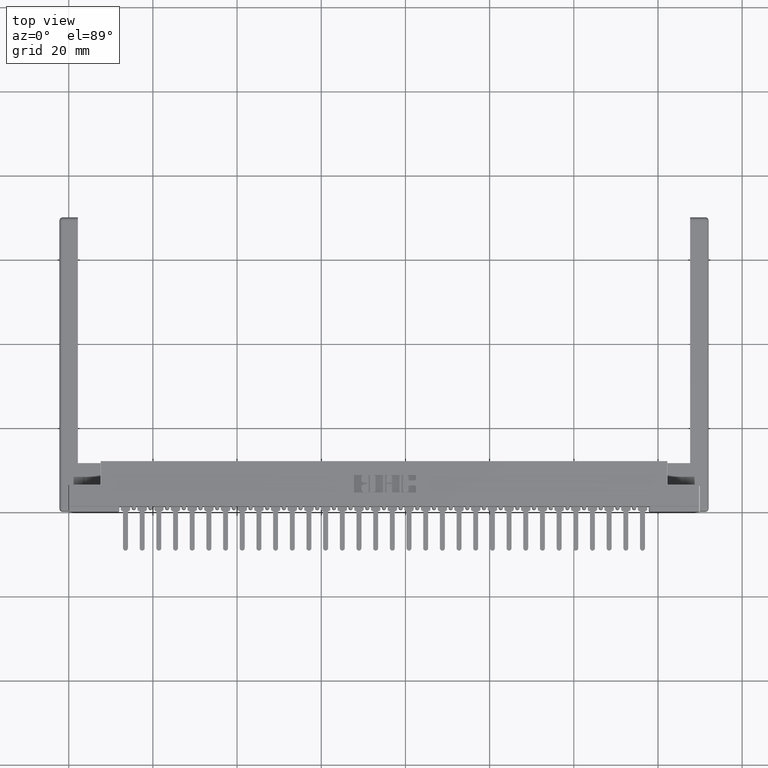
[diagram: clean part render]
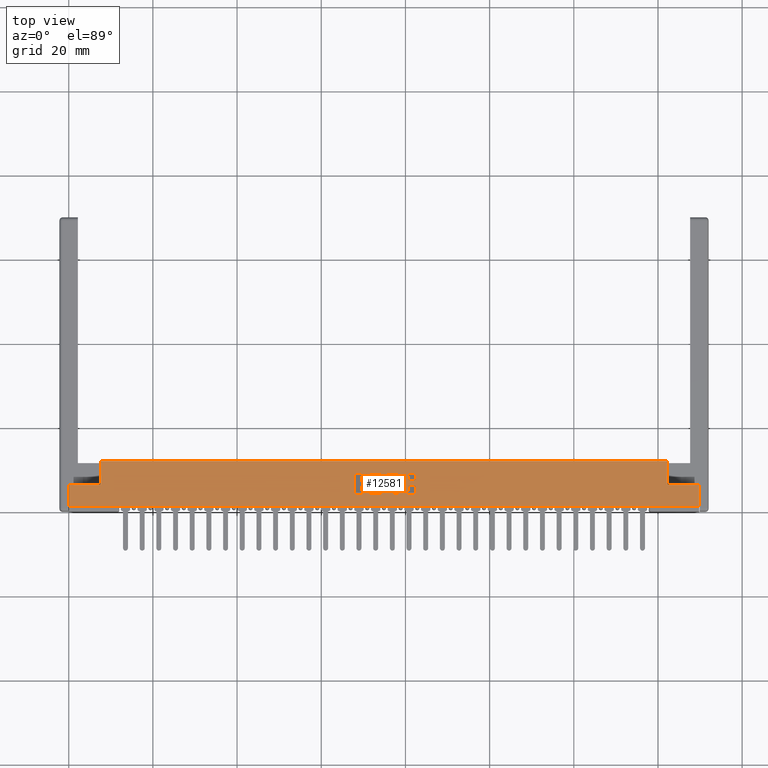
[diagram: same view with one face highlighted and labeled with its STEP entity id]
A machine part, top view. The second image highlights one B-rep face of the part: STEP entity #12581.
In plain terms, the highlighted planar face has unit normal (0, 0, -1).
Its self-contained STEP definition (entity closure, byte-faithful):
#109 = EDGE_CURVE ( 'NONE', #3890, #13025, #19730, .T. ) ;
#148 = VERTEX_POINT ( 'NONE', #159 ) ;
#159 = CARTESIAN_POINT ( 'NONE',  ( 2.814770709962975737, 0.1638432979619831309, 0.0000000000000000000 ) ) ;
#169 = EDGE_CURVE ( 'NONE', #148, #7857, #10011, .T. ) ;
#322 = DIRECTION ( 'NONE',  ( 1.000000000000000000, 0.0000000000000000000, 0.0000000000000000000 ) ) ;
#379 = DIRECTION ( 'NONE',  ( 1.000000000000000000, 0.0000000000000000000, 0.0000000000000000000 ) ) ;
#389 = VERTEX_POINT ( 'NONE', #3522 ) ;
#432 = ORIENTED_EDGE ( 'NONE', *, *, #19576, .F. ) ;
#437 = VERTEX_POINT ( 'NONE', #1565 ) ;
#440 = CARTESIAN_POINT ( 'NONE',  ( 2.782133606535350800, 0.3532857328953861731, 0.0000000000000000000 ) ) ;
#445 = VECTOR ( 'NONE', #20521, 39.37007874015748143 ) ;
#519 = ORIENTED_EDGE ( 'NONE', *, *, #14293, .F. ) ;
#563 = CARTESIAN_POINT ( 'NONE',  ( 2.677842110619921723, 0.1736589681657899065, 0.0000000000000000000 ) ) ;
#579 = CARTESIAN_POINT ( 'NONE',  ( 3.245678631909939771, 0.0000000000000000000, 0.0000000000000000000 ) ) ;
#616 = AXIS2_PLACEMENT_3D ( 'NONE', #10882, #13420, #27750 ) ;
#619 = DIRECTION ( 'NONE',  ( -1.000000000000000000, 0.0000000000000000000, 0.0000000000000000000 ) ) ;
#642 = CARTESIAN_POINT ( 'NONE',  ( -0.0000000000000000000, 0.2551290308573567756, 0.0000000000000000000 ) ) ;
#692 = CARTESIAN_POINT ( 'NONE',  ( 0.0000000000000000000, 0.2499999999999999722, 0.0000000000000000000 ) ) ;
#727 = ORIENTED_EDGE ( 'NONE', *, *, #15543, .T. ) ;
#771 = EDGE_CURVE ( 'NONE', #2831, #27745, #6830, .T. ) ;
#850 = VERTEX_POINT ( 'NONE', #15987 ) ;
#930 = AXIS2_PLACEMENT_3D ( 'NONE', #18938, #6392, #11117 ) ;
#931 = ORIENTED_EDGE ( 'NONE', *, *, #21937, .F. ) ;
#1007 = FACE_OUTER_BOUND ( 'NONE', #15620, .T. ) ;
#1031 = VERTEX_POINT ( 'NONE', #7723 ) ;
#1037 = CIRCLE ( 'NONE', #16191, 0.009815670203805798924 ) ;
#1085 = DIRECTION ( 'NONE',  ( -1.000000000000000000, 0.0000000000000000000, 0.0000000000000000000 ) ) ;
#1098 = VERTEX_POINT ( 'NONE', #12626 ) ;
#1124 = CIRCLE ( 'NONE', #4208, 0.009815670203787768208 ) ;
#1175 = VECTOR ( 'NONE', #12589, 39.37007874015748143 ) ;
#1291 = ORIENTED_EDGE ( 'NONE', *, *, #27779, .F. ) ;
#1322 = VERTEX_POINT ( 'NONE', #2610 ) ;
#1350 = ORIENTED_EDGE ( 'NONE', *, *, #14114, .F. ) ;
#1389 = CIRCLE ( 'NONE', #6483, 0.006870969142662365636 ) ;
#1503 = CARTESIAN_POINT ( 'NONE',  ( -8.743304377293396836E-15, 0.2551290308572464194, 0.0000000000000000000 ) ) ;
#1531 = DIRECTION ( 'NONE',  ( -0.0000000000000000000, 0.0000000000000000000, 1.000000000000000000 ) ) ;
#1532 = VERTEX_POINT ( 'NONE', #12893 ) ;
#1565 = CARTESIAN_POINT ( 'NONE',  ( 5.897999999999998799, 0.2499999999999999722, 0.0000000000000000000 ) ) ;
#1599 = VERTEX_POINT ( 'NONE', #6395 ) ;
#1664 = EDGE_CURVE ( 'NONE', #6269, #148, #9920, .T. ) ;
#1671 = DIRECTION ( 'NONE',  ( -0.0000000000000000000, 0.0000000000000000000, 1.000000000000000000 ) ) ;
#1692 = CARTESIAN_POINT ( 'NONE',  ( 3.120038053301264824, 0.1736589681657899065, 0.0000000000000000000 ) ) ;
#1855 = ORIENTED_EDGE ( 'NONE', *, *, #16971, .T. ) ;
#1934 = AXIS2_PLACEMENT_3D ( 'NONE', #12539, #7633, #14613 ) ;
#2101 = EDGE_CURVE ( 'NONE', #17139, #29171, #3014, .T. ) ;
#2200 = DIRECTION ( 'NONE',  ( -0.0000000000000000000, 0.0000000000000000000, 1.000000000000000000 ) ) ;
#2324 = EDGE_CURVE ( 'NONE', #7024, #12341, #1037, .T. ) ;
#2334 = EDGE_LOOP ( 'NONE', ( #19324, #1350, #1855, #3998, #10171, #3853, #15343, #30372, #20152, #22276, #3202, #16376, #24908, #14928 ) ) ;
#2430 = CARTESIAN_POINT ( 'NONE',  ( 2.677842110619937710, 0.3503410318342100038, 0.0000000000000000000 ) ) ;
#2512 = CARTESIAN_POINT ( 'NONE',  ( 3.083229290037013293, 0.3601567020380065376, 0.0000000000000000000 ) ) ;
#2610 = CARTESIAN_POINT ( 'NONE',  ( 3.235862961706166274, 0.2909562271012334222, 0.0000000000000000000 ) ) ;
#2680 = ORIENTED_EDGE ( 'NONE', *, *, #14192, .F. ) ;
#2724 = CARTESIAN_POINT ( 'NONE',  ( 3.176478156973165490, 0.3201578454992597966, 0.0000000000000000000 ) ) ;
#2770 = CARTESIAN_POINT ( 'NONE',  ( 3.186293827176966076, 0.2433502266127574865, 0.0000000000000000000 ) ) ;
#2802 = LINE ( 'NONE', #3272, #26604 ) ;
#2831 = VERTEX_POINT ( 'NONE', #20261 ) ;
#2888 = DIRECTION ( 'NONE',  ( -0.0000000000000000000, 0.0000000000000000000, 1.000000000000000000 ) ) ;
#2890 = CARTESIAN_POINT ( 'NONE',  ( 3.033660155507785561, 0.1638432979619845187, 0.0000000000000000000 ) ) ;
#2904 = DIRECTION ( 'NONE',  ( 1.000000000000000000, 0.0000000000000000000, 0.0000000000000000000 ) ) ;
#2906 = CIRCLE ( 'NONE', #9982, 0.009815670203795418339 ) ;
#2965 = DIRECTION ( 'NONE',  ( 0.0000000000000000000, -1.000000000000000000, 0.0000000000000000000 ) ) ;
#3002 = DIRECTION ( 'NONE',  ( 1.000000000000000000, 0.0000000000000000000, 0.0000000000000000000 ) ) ;
#3014 = CIRCLE ( 'NONE', #27864, 0.006870969142648706424 ) ;
#3190 = CARTESIAN_POINT ( 'NONE',  ( 3.083229290037010184, 0.1638432979619845187, 0.0000000000000000000 ) ) ;
#3202 = ORIENTED_EDGE ( 'NONE', *, *, #24760, .T. ) ;
#3237 = CARTESIAN_POINT ( 'NONE',  ( 0.0000000000000000000, 0.2499999999999999722, 0.0000000000000000000 ) ) ;
#3256 = DIRECTION ( 'NONE',  ( -1.000000000000000000, 0.0000000000000000000, -0.0000000000000000000 ) ) ;
#3272 = CARTESIAN_POINT ( 'NONE',  ( 3.023844485303984531, 0.0000000000000000000, 0.0000000000000000000 ) ) ;
#3386 = AXIS2_PLACEMENT_3D ( 'NONE', #14085, #21421, #11685 ) ;
#3504 = AXIS2_PLACEMENT_3D ( 'NONE', #440, #19837, #3002 ) ;
#3522 = CARTESIAN_POINT ( 'NONE',  ( 3.235862961706133412, 0.1638432979619831309, 0.0000000000000000000 ) ) ;
#3678 = CARTESIAN_POINT ( 'NONE',  ( 3.245678631909971745, 0.3503410318341947383, 0.0000000000000000000 ) ) ;
#3724 = DIRECTION ( 'NONE',  ( -0.0000000000000000000, 0.0000000000000000000, 1.000000000000000000 ) ) ;
#3803 = CARTESIAN_POINT ( 'NONE',  ( 2.782133606415413851, 0.1775852362473101520, 0.0000000000000000000 ) ) ;
#3841 = CARTESIAN_POINT ( 'NONE',  ( 2.737226915352909185, 0.3002811137948582787, 0.0000000000000000000 ) ) ;
#3850 = CARTESIAN_POINT ( 'NONE',  ( 3.014028815100187497, 0.2551290308573497256, 0.0000000000000000000 ) ) ;
#3853 = ORIENTED_EDGE ( 'NONE', *, *, #10281, .F. ) ;
#3890 = VERTEX_POINT ( 'NONE', #5492 ) ;
#3896 = LINE ( 'NONE', #25804, #26090 ) ;
#3897 = ORIENTED_EDGE ( 'NONE', *, *, #771, .F. ) ;
#3952 = CARTESIAN_POINT ( 'NONE',  ( 2.782133606535350800, 0.3532857328953861731, 0.0000000000000000000 ) ) ;
#3954 = AXIS2_PLACEMENT_3D ( 'NONE', #17218, #26909, #17370 ) ;
#3987 = ORIENTED_EDGE ( 'NONE', *, *, #6527, .T. ) ;
#3998 = ORIENTED_EDGE ( 'NONE', *, *, #31070, .F. ) ;
#4003 = DIRECTION ( 'NONE',  ( 1.000000000000000000, 0.0000000000000000000, 0.0000000000000000000 ) ) ;
#4071 = DIRECTION ( 'NONE',  ( -1.000000000000000000, -3.427012734660361250E-14, 0.0000000000000000000 ) ) ;
#4115 = ORIENTED_EDGE ( 'NONE', *, *, #10347, .F. ) ;
#4141 = CARTESIAN_POINT ( 'NONE',  ( 0.4729999999999998650, 0.05099999999999999672, 0.0000000000000000000 ) ) ;
#4208 = AXIS2_PLACEMENT_3D ( 'NONE', #7457, #22531, #17126 ) ;
#4261 = ORIENTED_EDGE ( 'NONE', *, *, #5994, .F. ) ;
#4278 = VECTOR ( 'NONE', #5283, 39.37007874015748143 ) ;
#4300 = VECTOR ( 'NONE', #5176, 39.37007874015748143 ) ;
#4550 = CARTESIAN_POINT ( 'NONE',  ( 0.0000000000000000000, 0.4729999999999999760, 0.0000000000000000000 ) ) ;
#4598 = CARTESIAN_POINT ( 'NONE',  ( 3.176478156973165490, 0.0000000000000000000, 0.0000000000000000000 ) ) ;
#4605 = ORIENTED_EDGE ( 'NONE', *, *, #12199, .T. ) ;
#4720 = DIRECTION ( 'NONE',  ( 1.000000000000000000, 0.0000000000000000000, 0.0000000000000000000 ) ) ;
#4756 = DIRECTION ( 'NONE',  ( 0.0000000000000000000, -1.000000000000000000, 0.0000000000000000000 ) ) ;
#4839 = VECTOR ( 'NONE', #2965, 39.37007874015748143 ) ;
#4893 = VERTEX_POINT ( 'NONE', #2512 ) ;
#4933 = DIRECTION ( 'NONE',  ( -1.000000000000000000, 0.0000000000000000000, 0.0000000000000000000 ) ) ;
#4966 = CARTESIAN_POINT ( 'NONE',  ( 3.093044960240805885, 0.0000000000000000000, 0.0000000000000000000 ) ) ;
#5016 = EDGE_CURVE ( 'NONE', #14729, #20585, #20461, .T. ) ;
#5022 = CARTESIAN_POINT ( 'NONE',  ( 2.789004575677972664, 0.2620000000000202722, 0.0000000000000000000 ) ) ;
#5116 = EDGE_CURVE ( 'NONE', #9451, #1532, #19585, .T. ) ;
#5176 = DIRECTION ( 'NONE',  ( 1.000000000000000000, -0.0000000000000000000, 0.0000000000000000000 ) ) ;
#5223 = LINE ( 'NONE', #26660, #19167 ) ;
#5230 = AXIS2_PLACEMENT_3D ( 'NONE', #22480, #3724, #6105 ) ;
#5283 = DIRECTION ( 'NONE',  ( 1.000000000000000000, 0.0000000000000000000, 0.0000000000000000000 ) ) ;
#5465 = VECTOR ( 'NONE', #4933, 39.37007874015748143 ) ;
#5492 = CARTESIAN_POINT ( 'NONE',  ( 3.245678631909971745, 0.3007718973050385602, 0.0000000000000000000 ) ) ;
#5557 = CARTESIAN_POINT ( 'NONE',  ( 2.768637060005083583, 0.2237188862052004734, 0.0000000000000000000 ) ) ;
#5617 = DIRECTION ( 'NONE',  ( 1.000000000000000000, 0.0000000000000000000, 0.0000000000000000000 ) ) ;
#5654 = CARTESIAN_POINT ( 'NONE',  ( -0.0000000000000000000, 0.3464147637527356105, 0.0000000000000000000 ) ) ;
#5676 = CIRCLE ( 'NONE', #9700, 0.009815670203841313918 ) ;
#5696 = VERTEX_POINT ( 'NONE', #7322 ) ;
#5706 = ORIENTED_EDGE ( 'NONE', *, *, #19666, .F. ) ;
#5769 = CIRCLE ( 'NONE', #7289, 0.009815670203803066735 ) ;
#5818 = ORIENTED_EDGE ( 'NONE', *, *, #25446, .F. ) ;
#5905 = ORIENTED_EDGE ( 'NONE', *, *, #24497, .F. ) ;
#5953 = EDGE_CURVE ( 'NONE', #20899, #16393, #11370, .T. ) ;
#5994 = EDGE_CURVE ( 'NONE', #1031, #5696, #16004, .T. ) ;
#6018 = CARTESIAN_POINT ( 'NONE',  ( -0.0000000000000000000, 0.1638432979619831309, 0.0000000000000000000 ) ) ;
#6105 = DIRECTION ( 'NONE',  ( 1.000000000000000000, 0.0000000000000000000, 0.0000000000000000000 ) ) ;
#6269 = VERTEX_POINT ( 'NONE', #22517 ) ;
#6322 = DIRECTION ( 'NONE',  ( -0.0000000000000000000, 0.0000000000000000000, 1.000000000000000000 ) ) ;
#6392 = DIRECTION ( 'NONE',  ( -0.0000000000000000000, 0.0000000000000000000, 1.000000000000000000 ) ) ;
#6395 = CARTESIAN_POINT ( 'NONE',  ( 2.967404381632126942, 0.3601567020380065376, 0.0000000000000000000 ) ) ;
#6434 = VECTOR ( 'NONE', #13041, 39.37007874015748143 ) ;
#6437 = VECTOR ( 'NONE', #25426, 39.37007874015748143 ) ;
#6483 = AXIS2_PLACEMENT_3D ( 'NONE', #14876, #2200, #12324 ) ;
#6527 = EDGE_CURVE ( 'NONE', #20843, #30361, #11668, .T. ) ;
#6767 = EDGE_CURVE ( 'NONE', #26698, #1322, #21854, .T. ) ;
#6830 = CIRCLE ( 'NONE', #23558, 0.009815670203806891800 ) ;
#6873 = VECTOR ( 'NONE', #29264, 39.37007874015748143 ) ;
#7024 = VERTEX_POINT ( 'NONE', #11767 ) ;
#7167 = CARTESIAN_POINT ( 'NONE',  ( 2.971330649713646466, 0.0000000000000000000, 0.0000000000000000000 ) ) ;
#7176 = DIRECTION ( 'NONE',  ( 0.0000000000000000000, 1.000000000000000000, -0.0000000000000000000 ) ) ;
#7199 = DIRECTION ( 'NONE',  ( 1.000000000000000000, 0.0000000000000000000, 0.0000000000000000000 ) ) ;
#7247 = ORIENTED_EDGE ( 'NONE', *, *, #14969, .F. ) ;
#7286 = AXIS2_PLACEMENT_3D ( 'NONE', #18345, #22966, #10562 ) ;
#7289 = AXIS2_PLACEMENT_3D ( 'NONE', #7498, #2888, #322 ) ;
#7322 = CARTESIAN_POINT ( 'NONE',  ( 3.120038053301299019, 0.3601567020380510020, 0.0000000000000000000 ) ) ;
#7356 = LINE ( 'NONE', #17017, #6873 ) ;
#7403 = CARTESIAN_POINT ( 'NONE',  ( -0.0000000000000000000, 0.2909562271012335888, 0.0000000000000000000 ) ) ;
#7457 = CARTESIAN_POINT ( 'NONE',  ( 3.186293827176966076, 0.2335345564089694737, 0.0000000000000000000 ) ) ;
#7465 = CARTESIAN_POINT ( 'NONE',  ( 0.2979999999999999871, 0.2499999999999999722, 0.0000000000000000000 ) ) ;
#7469 = CARTESIAN_POINT ( 'NONE',  ( 3.176478156973178368, 0.2038421540424529277, 0.0000000000000000000 ) ) ;
#7477 = DIRECTION ( 'NONE',  ( -0.0000000000000000000, 0.0000000000000000000, 1.000000000000000000 ) ) ;
#7498 = CARTESIAN_POINT ( 'NONE',  ( 2.981146319917449272, 0.2453133606535455313, 0.0000000000000000000 ) ) ;
#7545 = EDGE_CURVE ( 'NONE', #1599, #1532, #28489, .T. ) ;
#7596 = CIRCLE ( 'NONE', #24344, 0.009815670203787221770 ) ;
#7633 = DIRECTION ( 'NONE',  ( -0.0000000000000000000, 0.0000000000000000000, 1.000000000000000000 ) ) ;
#7723 = CARTESIAN_POINT ( 'NONE',  ( 3.235862961706168051, 0.3601567020380510020, 0.0000000000000000000 ) ) ;
#7765 = LINE ( 'NONE', #27142, #23755 ) ;
#7768 = ORIENTED_EDGE ( 'NONE', *, *, #1664, .F. ) ;
#7786 = CARTESIAN_POINT ( 'NONE',  ( 2.782133606415388094, 0.2551290308573567756, 0.0000000000000000000 ) ) ;
#7857 = VERTEX_POINT ( 'NONE', #11736 ) ;
#7954 = VERTEX_POINT ( 'NONE', #27328 ) ;
#7956 = CIRCLE ( 'NONE', #11990, 0.009815670203840767480 ) ;
#7962 = VERTEX_POINT ( 'NONE', #24948 ) ;
#7973 = CARTESIAN_POINT ( 'NONE',  ( 2.814770709963009487, 0.3503410318342100038, 0.0000000000000000000 ) ) ;
#7996 = LINE ( 'NONE', #26902, #1175 ) ;
#8020 = DIRECTION ( 'NONE',  ( -0.0000000000000000000, 1.000000000000000000, -0.0000000000000000000 ) ) ;
#8195 = VECTOR ( 'NONE', #9836, 39.37007874015748143 ) ;
#8329 = DIRECTION ( 'NONE',  ( 0.0000000000000000000, 1.000000000000000000, -0.0000000000000000000 ) ) ;
#8383 = EDGE_CURVE ( 'NONE', #8871, #13572, #1124, .T. ) ;
#8474 = CARTESIAN_POINT ( 'NONE',  ( 2.668026440416114919, 0.3503410318342100038, 0.0000000000000000000 ) ) ;
#8499 = CARTESIAN_POINT ( 'NONE',  ( 3.235862961706152507, 0.2335345564089703618, 0.0000000000000000000 ) ) ;
#8502 = CARTESIAN_POINT ( 'NONE',  ( 3.176478156973165490, 0.3007718973050451661, 0.0000000000000000000 ) ) ;
#8572 = EDGE_CURVE ( 'NONE', #7857, #23852, #16874, .T. ) ;
#8584 = DIRECTION ( 'NONE',  ( -0.0000000000000000000, 0.0000000000000000000, 1.000000000000000000 ) ) ;
#8732 = VECTOR ( 'NONE', #20816, 39.37007874015748143 ) ;
#8757 = AXIS2_PLACEMENT_3D ( 'NONE', #25228, #30439, #20324 ) ;
#8835 = VERTEX_POINT ( 'NONE', #3237 ) ;
#8871 = VERTEX_POINT ( 'NONE', #2770 ) ;
#9147 = VERTEX_POINT ( 'NONE', #21796 ) ;
#9150 = CARTESIAN_POINT ( 'NONE',  ( 2.768637060005083583, 0.2551290308573567756, 0.0000000000000000000 ) ) ;
#9232 = EDGE_CURVE ( 'NONE', #9412, #18722, #5769, .T. ) ;
#9249 = AXIS2_PLACEMENT_3D ( 'NONE', #13718, #1671, #16752 ) ;
#9302 = VECTOR ( 'NONE', #19796, 39.37007874015748143 ) ;
#9333 = LINE ( 'NONE', #14092, #17346 ) ;
#9409 = CARTESIAN_POINT ( 'NONE',  ( 2.782133606535334813, 0.1707142671046479043, 0.0000000000000000000 ) ) ;
#9412 = VERTEX_POINT ( 'NONE', #30178 ) ;
#9415 = EDGE_CURVE ( 'NONE', #23434, #9769, #11086, .T. ) ;
#9432 = CIRCLE ( 'NONE', #21616, 0.009815670203811809741 ) ;
#9447 = CARTESIAN_POINT ( 'NONE',  ( 3.150221239177998012, 0.2038421540424529277, 0.0000000000000000000 ) ) ;
#9451 = VERTEX_POINT ( 'NONE', #23038 ) ;
#9484 = ORIENTED_EDGE ( 'NONE', *, *, #23754, .T. ) ;
#9556 = DIRECTION ( 'NONE',  ( -0.0000000000000000000, 0.0000000000000000000, 1.000000000000000000 ) ) ;
#9612 = ORIENTED_EDGE ( 'NONE', *, *, #19157, .F. ) ;
#9664 = CARTESIAN_POINT ( 'NONE',  ( 2.768637060005108896, 0.1775852362473085422, 0.0000000000000000000 ) ) ;
#9700 = AXIS2_PLACEMENT_3D ( 'NONE', #25754, #8584, #4003 ) ;
#9728 = VERTEX_POINT ( 'NONE', #7465 ) ;
#9755 = CIRCLE ( 'NONE', #5230, 0.006870969142657995000 ) ;
#9767 = CARTESIAN_POINT ( 'NONE',  ( 3.235862961706131191, 0.3503410318342108920, 0.0000000000000000000 ) ) ;
#9769 = VERTEX_POINT ( 'NONE', #29521 ) ;
#9836 = DIRECTION ( 'NONE',  ( 0.0000000000000000000, -1.000000000000000000, 0.0000000000000000000 ) ) ;
#9838 = AXIS2_PLACEMENT_3D ( 'NONE', #2430, #12081, #17011 ) ;
#9847 = CARTESIAN_POINT ( 'NONE',  ( -0.0000000000000000000, 0.1638432979619831309, 0.0000000000000000000 ) ) ;
#9920 = CIRCLE ( 'NONE', #22118, 0.009815670203806891800 ) ;
#9927 = CARTESIAN_POINT ( 'NONE',  ( 3.110222383097458021, 0.0000000000000000000, 0.0000000000000000000 ) ) ;
#9982 = AXIS2_PLACEMENT_3D ( 'NONE', #16236, #25941, #28795 ) ;
#10011 = LINE ( 'NONE', #9847, #17844 ) ;
#10171 = ORIENTED_EDGE ( 'NONE', *, *, #14663, .T. ) ;
#10281 = EDGE_CURVE ( 'NONE', #30811, #20310, #18910, .T. ) ;
#10336 = EDGE_CURVE ( 'NONE', #13511, #14176, #13866, .T. ) ;
#10347 = EDGE_CURVE ( 'NONE', #13572, #30361, #20900, .T. ) ;
#10396 = LINE ( 'NONE', #5654, #9302 ) ;
#10433 = ORIENTED_EDGE ( 'NONE', *, *, #14988, .F. ) ;
#10562 = DIRECTION ( 'NONE',  ( 1.000000000000000000, 0.0000000000000000000, 0.0000000000000000000 ) ) ;
#10616 = VECTOR ( 'NONE', #11019, 39.37007874015748143 ) ;
#10681 = DIRECTION ( 'NONE',  ( 0.0000000000000000000, 0.0000000000000000000, -1.000000000000000000 ) ) ;
#10691 = CARTESIAN_POINT ( 'NONE',  ( 2.782133606535309056, 0.2688709691426837689, 0.0000000000000000000 ) ) ;
#10802 = CIRCLE ( 'NONE', #28581, 0.009815670203797057652 ) ;
#10882 = CARTESIAN_POINT ( 'NONE',  ( 3.235862961706133412, 0.1736589681657899065, 0.0000000000000000000 ) ) ;
#11019 = DIRECTION ( 'NONE',  ( 0.0000000000000000000, 1.000000000000000000, -0.0000000000000000000 ) ) ;
#11022 = CARTESIAN_POINT ( 'NONE',  ( 3.245678631909939771, 0.1736589681657829121, 0.0000000000000000000 ) ) ;
#11086 = LINE ( 'NONE', #4141, #8732 ) ;
#11117 = DIRECTION ( 'NONE',  ( 1.000000000000000000, 0.0000000000000000000, 0.0000000000000000000 ) ) ;
#11133 = FACE_BOUND ( 'NONE', #19649, .T. ) ;
#11159 = DIRECTION ( 'NONE',  ( 1.000000000000000000, -0.0000000000000000000, 0.0000000000000000000 ) ) ;
#11164 = DIRECTION ( 'NONE',  ( 1.000000000000000000, 0.0000000000000000000, 0.0000000000000000000 ) ) ;
#11171 = EDGE_CURVE ( 'NONE', #28905, #18021, #10802, .T. ) ;
#11183 = EDGE_CURVE ( 'NONE', #7954, #17139, #10396, .T. ) ;
#11254 = EDGE_CURVE ( 'NONE', #30811, #28905, #2802, .T. ) ;
#11319 = CARTESIAN_POINT ( 'NONE',  ( 2.940411288571668891, 0.3503410318342100038, 0.0000000000000000000 ) ) ;
#11370 = LINE ( 'NONE', #15537, #30484 ) ;
#11425 = VECTOR ( 'NONE', #13792, 39.37007874015748143 ) ;
#11490 = CARTESIAN_POINT ( 'NONE',  ( 2.677842110619917726, 0.1638432979619849350, 0.0000000000000000000 ) ) ;
#11504 = VERTEX_POINT ( 'NONE', #23393 ) ;
#11619 = DIRECTION ( 'NONE',  ( -0.0000000000000000000, 0.0000000000000000000, 1.000000000000000000 ) ) ;
#11647 = EDGE_CURVE ( 'NONE', #850, #24023, #31138, .T. ) ;
#11668 = CIRCLE ( 'NONE', #14219, 0.02625691779518049898 ) ;
#11685 = DIRECTION ( 'NONE',  ( 1.000000000000000000, 0.0000000000000000000, 0.0000000000000000000 ) ) ;
#11694 = VERTEX_POINT ( 'NONE', #19740 ) ;
#11719 = CARTESIAN_POINT ( 'NONE',  ( 2.737226915352909185, 0.0000000000000000000, 0.0000000000000000000 ) ) ;
#11734 = VECTOR ( 'NONE', #30455, 39.37007874015748143 ) ;
#11736 = CARTESIAN_POINT ( 'NONE',  ( 2.930595618367861199, 0.1638432979619831309, 0.0000000000000000000 ) ) ;
#11742 = VECTOR ( 'NONE', #4756, 39.37007874015748143 ) ;
#11767 = CARTESIAN_POINT ( 'NONE',  ( 2.668026440416114919, 0.1736589681657899065, 0.0000000000000000000 ) ) ;
#11869 = CIRCLE ( 'NONE', #29646, 0.03141014465217440571 ) ;
#11990 = AXIS2_PLACEMENT_3D ( 'NONE', #7973, #24358, #2904 ) ;
#12012 = VECTOR ( 'NONE', #8020, 39.37007874015748143 ) ;
#12081 = DIRECTION ( 'NONE',  ( -0.0000000000000000000, 0.0000000000000000000, 1.000000000000000000 ) ) ;
#12167 = ORIENTED_EDGE ( 'NONE', *, *, #169, .F. ) ;
#12187 = DIRECTION ( 'NONE',  ( 0.0000000000000000000, -1.000000000000000000, 0.0000000000000000000 ) ) ;
#12199 = EDGE_CURVE ( 'NONE', #15595, #30620, #11869, .T. ) ;
#12324 = DIRECTION ( 'NONE',  ( 1.000000000000000000, 0.0000000000000000000, 0.0000000000000000000 ) ) ;
#12341 = VERTEX_POINT ( 'NONE', #11490 ) ;
#12465 = CARTESIAN_POINT ( 'NONE',  ( 3.120038053301264824, 0.1638432979619831309, 0.0000000000000000000 ) ) ;
#12505 = LINE ( 'NONE', #17606, #5465 ) ;
#12539 = CARTESIAN_POINT ( 'NONE',  ( 3.120038053301299019, 0.3503410318342100038, 0.0000000000000000000 ) ) ;
#12578 = ORIENTED_EDGE ( 'NONE', *, *, #11647, .F. ) ;
#12581 = ADVANCED_FACE ( 'NONE', ( #27999, #11133, #1007, #27851, #15453 ), #22789, .F. ) ;
#12589 = DIRECTION ( 'NONE',  ( -1.000000000000000000, 0.0000000000000000000, 0.0000000000000000000 ) ) ;
#12626 = CARTESIAN_POINT ( 'NONE',  ( 2.782133606415413851, 0.1638432979619856011, 0.0000000000000000000 ) ) ;
#12632 = DIRECTION ( 'NONE',  ( 1.000000000000000000, 0.0000000000000000000, 0.0000000000000000000 ) ) ;
#12713 = VECTOR ( 'NONE', #17072, 39.37007874015748143 ) ;
#12760 = LINE ( 'NONE', #29323, #12012 ) ;
#12793 = ORIENTED_EDGE ( 'NONE', *, *, #5953, .F. ) ;
#12893 = CARTESIAN_POINT ( 'NONE',  ( 2.957588711428330353, 0.3503410318342100038, 0.0000000000000000000 ) ) ;
#12942 = EDGE_CURVE ( 'NONE', #11504, #8871, #7356, .T. ) ;
#13025 = VERTEX_POINT ( 'NONE', #3678 ) ;
#13041 = DIRECTION ( 'NONE',  ( -0.0000000000000000000, 1.000000000000000000, -0.0000000000000000000 ) ) ;
#13081 = CIRCLE ( 'NONE', #1934, 0.009815670203841313918 ) ;
#13211 = EDGE_CURVE ( 'NONE', #15595, #7962, #16507, .T. ) ;
#13310 = EDGE_CURVE ( 'NONE', #29461, #16181, #18563, .T. ) ;
#13420 = DIRECTION ( 'NONE',  ( -0.0000000000000000000, 0.0000000000000000000, 1.000000000000000000 ) ) ;
#13489 = LINE ( 'NONE', #30194, #6437 ) ;
#13493 = CARTESIAN_POINT ( 'NONE',  ( 5.599999999999999645, 0.2499999999999999722, 0.0000000000000000000 ) ) ;
#13496 = CARTESIAN_POINT ( 'NONE',  ( 3.110222383097458021, 0.3503410318342100038, 0.0000000000000000000 ) ) ;
#13511 = VERTEX_POINT ( 'NONE', #22552 ) ;
#13555 = LINE ( 'NONE', #23426, #27717 ) ;
#13572 = VERTEX_POINT ( 'NONE', #25711 ) ;
#13596 = DIRECTION ( 'NONE',  ( 1.000000000000000000, 0.0000000000000000000, 0.0000000000000000000 ) ) ;
#13685 = EDGE_CURVE ( 'NONE', #14568, #29461, #25688, .T. ) ;
#13718 = CARTESIAN_POINT ( 'NONE',  ( 3.150221239177991350, 0.3201578459575294966, 0.0000000000000000000 ) ) ;
#13735 = ORIENTED_EDGE ( 'NONE', *, *, #12942, .F. ) ;
#13779 = LINE ( 'NONE', #30179, #445 ) ;
#13792 = DIRECTION ( 'NONE',  ( 0.0000000000000000000, 1.000000000000000000, -0.0000000000000000000 ) ) ;
#13803 = DIRECTION ( 'NONE',  ( 1.000000000000000000, 0.0000000000000000000, 0.0000000000000000000 ) ) ;
#13866 = LINE ( 'NONE', #4550, #19467 ) ;
#14023 = ORIENTED_EDGE ( 'NONE', *, *, #8383, .F. ) ;
#14030 = CIRCLE ( 'NONE', #24228, 0.009815670203840221042 ) ;
#14042 = CARTESIAN_POINT ( 'NONE',  ( 2.768637060005083583, 0.2688709691426837689, 0.0000000000000000000 ) ) ;
#14085 = CARTESIAN_POINT ( 'NONE',  ( 2.782133606535309056, 0.2620000000000202722, 0.0000000000000000000 ) ) ;
#14092 = CARTESIAN_POINT ( 'NONE',  ( 3.123964321382818099, 0.0000000000000000000, 0.0000000000000000000 ) ) ;
#14114 = EDGE_CURVE ( 'NONE', #24381, #4893, #2906, .T. ) ;
#14176 = VERTEX_POINT ( 'NONE', #14639 ) ;
#14192 = EDGE_CURVE ( 'NONE', #16393, #16571, #7956, .T. ) ;
#14219 = AXIS2_PLACEMENT_3D ( 'NONE', #9447, #18687, #14531 ) ;
#14259 = AXIS2_PLACEMENT_3D ( 'NONE', #15141, #20107, #379 ) ;
#14293 = EDGE_CURVE ( 'NONE', #12341, #1098, #13489, .T. ) ;
#14348 = ORIENTED_EDGE ( 'NONE', *, *, #8572, .F. ) ;
#14495 = CARTESIAN_POINT ( 'NONE',  ( 2.804955039759168489, 0.3503410318342100038, 0.0000000000000000000 ) ) ;
#14531 = DIRECTION ( 'NONE',  ( 1.000000000000000000, 0.0000000000000000000, 0.0000000000000000000 ) ) ;
#14568 = VERTEX_POINT ( 'NONE', #7786 ) ;
#14613 = DIRECTION ( 'NONE',  ( 1.000000000000000000, 0.0000000000000000000, 0.0000000000000000000 ) ) ;
#14639 = CARTESIAN_POINT ( 'NONE',  ( 5.599999999999999645, 0.4729999999999999760, 0.0000000000000000000 ) ) ;
#14663 = EDGE_CURVE ( 'NONE', #26239, #20310, #15073, .T. ) ;
#14729 = VERTEX_POINT ( 'NONE', #3803 ) ;
#14759 = LINE ( 'NONE', #7167, #8195 ) ;
#14772 = DIRECTION ( 'NONE',  ( 1.000000000000000000, 0.0000000000000000000, 0.0000000000000000000 ) ) ;
#14876 = CARTESIAN_POINT ( 'NONE',  ( 2.782133606535334813, 0.1707142671046479043, 0.0000000000000000000 ) ) ;
#14928 = ORIENTED_EDGE ( 'NONE', *, *, #7545, .F. ) ;
#14969 = EDGE_CURVE ( 'NONE', #24380, #14729, #1389, .T. ) ;
#14988 = EDGE_CURVE ( 'NONE', #16571, #6269, #5223, .T. ) ;
#15073 = LINE ( 'NONE', #22404, #21185 ) ;
#15104 = CIRCLE ( 'NONE', #17643, 0.03141014465215637153 ) ;
#15141 = CARTESIAN_POINT ( 'NONE',  ( 3.235862961706166274, 0.3007718973050385602, 0.0000000000000000000 ) ) ;
#15220 = ORIENTED_EDGE ( 'NONE', *, *, #25203, .F. ) ;
#15224 = EDGE_CURVE ( 'NONE', #24409, #20585, #31324, .T. ) ;
#15343 = ORIENTED_EDGE ( 'NONE', *, *, #11254, .T. ) ;
#15441 = CARTESIAN_POINT ( 'NONE',  ( 2.971330649713646466, 0.1707142671046479043, 0.0000000000000000000 ) ) ;
#15453 = FACE_BOUND ( 'NONE', #2334, .T. ) ;
#15537 = CARTESIAN_POINT ( 'NONE',  ( 0.0000000000000000000, 0.3601567020380510020, 0.0000000000000000000 ) ) ;
#15543 = EDGE_CURVE ( 'NONE', #16164, #14176, #27968, .T. ) ;
#15595 = VERTEX_POINT ( 'NONE', #3841 ) ;
#15620 = EDGE_LOOP ( 'NONE', ( #29702, #29470, #29511, #727, #30856, #29881, #31221, #21899 ) ) ;
#15687 = CARTESIAN_POINT ( 'NONE',  ( 0.0000000000000000000, 0.3601567020380510020, 0.0000000000000000000 ) ) ;
#15796 = EDGE_CURVE ( 'NONE', #30437, #9147, #20160, .T. ) ;
#15825 = ORIENTED_EDGE ( 'NONE', *, *, #17439, .F. ) ;
#15904 = DIRECTION ( 'NONE',  ( 1.000000000000000000, 0.0000000000000000000, 0.0000000000000000000 ) ) ;
#15987 = CARTESIAN_POINT ( 'NONE',  ( 2.677842110619937710, 0.3601567020380326833, 0.0000000000000000000 ) ) ;
#16004 = LINE ( 'NONE', #15687, #11734 ) ;
#16081 = AXIS2_PLACEMENT_3D ( 'NONE', #9409, #11619, #7199 ) ;
#16086 = VECTOR ( 'NONE', #22116, 39.37007874015748143 ) ;
#16089 = EDGE_CURVE ( 'NONE', #13025, #1031, #14030, .T. ) ;
#16162 = EDGE_CURVE ( 'NONE', #9728, #13511, #12760, .T. ) ;
#16164 = VERTEX_POINT ( 'NONE', #19955 ) ;
#16181 = VERTEX_POINT ( 'NONE', #10691 ) ;
#16191 = AXIS2_PLACEMENT_3D ( 'NONE', #563, #25345, #12632 ) ;
#16236 = CARTESIAN_POINT ( 'NONE',  ( 3.083229290037011072, 0.3503410318342102814, 0.0000000000000000000 ) ) ;
#16284 = ORIENTED_EDGE ( 'NONE', *, *, #18617, .F. ) ;
#16311 = AXIS2_PLACEMENT_3D ( 'NONE', #29284, #26891, #5617 ) ;
#16376 = ORIENTED_EDGE ( 'NONE', *, *, #23937, .F. ) ;
#16393 = VERTEX_POINT ( 'NONE', #30395 ) ;
#16476 = LINE ( 'NONE', #4598, #11742 ) ;
#16507 = LINE ( 'NONE', #11719, #11425 ) ;
#16571 = VERTEX_POINT ( 'NONE', #14495 ) ;
#16574 = ORIENTED_EDGE ( 'NONE', *, *, #25164, .F. ) ;
#16608 = ORIENTED_EDGE ( 'NONE', *, *, #2101, .F. ) ;
#16752 = DIRECTION ( 'NONE',  ( 1.000000000000000000, 0.0000000000000000000, 0.0000000000000000000 ) ) ;
#16874 = CIRCLE ( 'NONE', #8757, 0.009815670203806891800 ) ;
#16879 = EDGE_CURVE ( 'NONE', #1599, #4893, #18767, .T. ) ;
#16971 = EDGE_CURVE ( 'NONE', #24381, #18564, #29394, .T. ) ;
#17011 = DIRECTION ( 'NONE',  ( 1.000000000000000000, 0.0000000000000000000, 0.0000000000000000000 ) ) ;
#17017 = CARTESIAN_POINT ( 'NONE',  ( 0.0000000000000000000, 0.2433502266127574865, 0.0000000000000000000 ) ) ;
#17031 = EDGE_CURVE ( 'NONE', #5696, #25865, #13081, .T. ) ;
#17072 = DIRECTION ( 'NONE',  ( 1.000000000000000000, 0.0000000000000000000, 0.0000000000000000000 ) ) ;
#17126 = DIRECTION ( 'NONE',  ( 1.000000000000000000, 0.0000000000000000000, 0.0000000000000000000 ) ) ;
#17139 = VERTEX_POINT ( 'NONE', #29869 ) ;
#17145 = CARTESIAN_POINT ( 'NONE',  ( 2.668026440416114919, 0.0000000000000000000, 0.0000000000000000000 ) ) ;
#17218 = CARTESIAN_POINT ( 'NONE',  ( 2.768637060005108896, 0.2089953808994903239, 0.0000000000000000000 ) ) ;
#17346 = VECTOR ( 'NONE', #19047, 39.37007874015748143 ) ;
#17362 = ORIENTED_EDGE ( 'NONE', *, *, #13310, .F. ) ;
#17367 = ORIENTED_EDGE ( 'NONE', *, *, #17031, .F. ) ;
#17370 = DIRECTION ( 'NONE',  ( 1.000000000000000000, 0.0000000000000000000, 0.0000000000000000000 ) ) ;
#17439 = EDGE_CURVE ( 'NONE', #29171, #11694, #19210, .T. ) ;
#17606 = CARTESIAN_POINT ( 'NONE',  ( 0.0000000000000000000, 0.2688709691426837689, 0.0000000000000000000 ) ) ;
#17643 = AXIS2_PLACEMENT_3D ( 'NONE', #5557, #19528, #20014 ) ;
#17844 = VECTOR ( 'NONE', #14772, 39.37007874015748143 ) ;
#17913 = CARTESIAN_POINT ( 'NONE',  ( 2.971330649713646466, 0.2453133606535455313, 0.0000000000000000000 ) ) ;
#17921 = CARTESIAN_POINT ( 'NONE',  ( 3.123964321382818099, 0.2038421540424529277, 0.0000000000000000000 ) ) ;
#18021 = VERTEX_POINT ( 'NONE', #3850 ) ;
#18180 = VECTOR ( 'NONE', #13803, 39.37007874015748143 ) ;
#18190 = DIRECTION ( 'NONE',  ( -0.0000000000000000000, -1.000000000000000000, -0.0000000000000000000 ) ) ;
#18199 = CARTESIAN_POINT ( 'NONE',  ( 2.789004575677999309, 0.3532857328953861731, 0.0000000000000000000 ) ) ;
#18227 = VERTEX_POINT ( 'NONE', #2724 ) ;
#18345 = CARTESIAN_POINT ( 'NONE',  ( 3.033660155507787337, 0.1736589681657877970, 0.0000000000000000000 ) ) ;
#18456 = CARTESIAN_POINT ( 'NONE',  ( 2.814770709962975737, 0.1736589681657899065, 0.0000000000000000000 ) ) ;
#18563 = CIRCLE ( 'NONE', #27699, 0.006870969142663458512 ) ;
#18564 = VERTEX_POINT ( 'NONE', #21761 ) ;
#18617 = EDGE_CURVE ( 'NONE', #16181, #30620, #12505, .T. ) ;
#18687 = DIRECTION ( 'NONE',  ( -0.0000000000000000000, 0.0000000000000000000, 1.000000000000000000 ) ) ;
#18711 = DIRECTION ( 'NONE',  ( 1.000000000000000000, 0.0000000000000000000, 0.0000000000000000000 ) ) ;
#18722 = VERTEX_POINT ( 'NONE', #17913 ) ;
#18767 = LINE ( 'NONE', #23856, #18180 ) ;
#18812 = ORIENTED_EDGE ( 'NONE', *, *, #19422, .T. ) ;
#18843 = VECTOR ( 'NONE', #7176, 39.37007874015748143 ) ;
#18853 = DIRECTION ( 'NONE',  ( -0.0000000000000000000, 0.0000000000000000000, 1.000000000000000000 ) ) ;
#18854 = CARTESIAN_POINT ( 'NONE',  ( 3.023844485303984531, 0.2453133606535433664, 0.0000000000000000000 ) ) ;
#18910 = CIRCLE ( 'NONE', #7286, 0.009815670203803066735 ) ;
#18932 = VECTOR ( 'NONE', #28346, 39.37007874015748143 ) ;
#18938 = CARTESIAN_POINT ( 'NONE',  ( 2.768637060005124884, 0.3150046191005197449, 0.0000000000000000000 ) ) ;
#19047 = DIRECTION ( 'NONE',  ( 0.0000000000000000000, 1.000000000000000000, -0.0000000000000000000 ) ) ;
#19157 = EDGE_CURVE ( 'NONE', #1098, #24380, #21190, .T. ) ;
#19167 = VECTOR ( 'NONE', #29032, 39.37007874015748143 ) ;
#19210 = CIRCLE ( 'NONE', #3504, 0.006870969142648706424 ) ;
#19324 = ORIENTED_EDGE ( 'NONE', *, *, #16879, .T. ) ;
#19333 = ORIENTED_EDGE ( 'NONE', *, *, #28770, .F. ) ;
#19376 = ORIENTED_EDGE ( 'NONE', *, *, #15796, .F. ) ;
#19422 = EDGE_CURVE ( 'NONE', #28892, #22151, #15104, .T. ) ;
#19467 = VECTOR ( 'NONE', #28497, 39.37007874015748143 ) ;
#19528 = DIRECTION ( 'NONE',  ( -0.0000000000000000000, 0.0000000000000000000, 1.000000000000000000 ) ) ;
#19576 = EDGE_CURVE ( 'NONE', #24409, #22151, #7765, .T. ) ;
#19585 = LINE ( 'NONE', #31164, #16086 ) ;
#19649 = EDGE_LOOP ( 'NONE', ( #25368, #21664, #4605, #16284, #17362, #19688, #26029, #18812, #432, #25396, #28823, #7247, #9612, #519, #24178, #931, #12578, #25998, #15825, #16608, #23825 ) ) ;
#19666 = EDGE_CURVE ( 'NONE', #27745, #389, #27608, .T. ) ;
#19688 = ORIENTED_EDGE ( 'NONE', *, *, #13685, .F. ) ;
#19706 = LINE ( 'NONE', #17145, #25364 ) ;
#19730 = LINE ( 'NONE', #19881, #18843 ) ;
#19740 = CARTESIAN_POINT ( 'NONE',  ( 2.782133606535350800, 0.3601567020380326833, 0.0000000000000000000 ) ) ;
#19796 = DIRECTION ( 'NONE',  ( 1.000000000000000000, 0.0000000000000000000, 0.0000000000000000000 ) ) ;
#19837 = DIRECTION ( 'NONE',  ( -0.0000000000000000000, 0.0000000000000000000, 1.000000000000000000 ) ) ;
#19857 = CARTESIAN_POINT ( 'NONE',  ( 2.737226915352926948, 0.2237188862052004734, 0.0000000000000000000 ) ) ;
#19881 = CARTESIAN_POINT ( 'NONE',  ( 3.245678631909971745, 0.0000000000000000000, 0.0000000000000000000 ) ) ;
#19955 = CARTESIAN_POINT ( 'NONE',  ( 5.599999999999999645, 0.2499999999999999722, 0.0000000000000000000 ) ) ;
#19958 = CARTESIAN_POINT ( 'NONE',  ( 3.014028815100187497, 0.2453133606535527200, 0.0000000000000000000 ) ) ;
#20014 = DIRECTION ( 'NONE',  ( 1.000000000000000000, 0.0000000000000000000, 0.0000000000000000000 ) ) ;
#20074 = CARTESIAN_POINT ( 'NONE',  ( 2.737226915352926948, 0.2089953808994903239, 0.0000000000000000000 ) ) ;
#20087 = EDGE_CURVE ( 'NONE', #7954, #7962, #28312, .T. ) ;
#20107 = DIRECTION ( 'NONE',  ( -0.0000000000000000000, 0.0000000000000000000, 1.000000000000000000 ) ) ;
#20152 = ORIENTED_EDGE ( 'NONE', *, *, #30405, .T. ) ;
#20160 = LINE ( 'NONE', #579, #27249 ) ;
#20261 = CARTESIAN_POINT ( 'NONE',  ( 3.110222383097458021, 0.1736589681657899065, 0.0000000000000000000 ) ) ;
#20310 = VERTEX_POINT ( 'NONE', #2890 ) ;
#20324 = DIRECTION ( 'NONE',  ( 1.000000000000000000, 0.0000000000000000000, 0.0000000000000000000 ) ) ;
#20439 = EDGE_CURVE ( 'NONE', #437, #23434, #13779, .T. ) ;
#20452 = DIRECTION ( 'NONE',  ( -0.0000000000000000000, 0.0000000000000000000, 1.000000000000000000 ) ) ;
#20461 = LINE ( 'NONE', #29964, #22200 ) ;
#20521 = DIRECTION ( 'NONE',  ( -0.0000000000000000000, -1.000000000000000000, -0.0000000000000000000 ) ) ;
#20570 = CARTESIAN_POINT ( 'NONE',  ( 0.0000000000000000000, 0.4729999999999999760, 0.0000000000000000000 ) ) ;
#20585 = VERTEX_POINT ( 'NONE', #9664 ) ;
#20710 = DIRECTION ( 'NONE',  ( -0.0000000000000000000, 0.0000000000000000000, 1.000000000000000000 ) ) ;
#20759 = DIRECTION ( 'NONE',  ( -0.0000000000000000000, 0.0000000000000000000, 1.000000000000000000 ) ) ;
#20816 = DIRECTION ( 'NONE',  ( -1.000000000000000000, -0.0000000000000000000, -7.017285087388212923E-23 ) ) ;
#20843 = VERTEX_POINT ( 'NONE', #17921 ) ;
#20899 = VERTEX_POINT ( 'NONE', #30149 ) ;
#20900 = LINE ( 'NONE', #26291, #18932 ) ;
#21185 = VECTOR ( 'NONE', #619, 39.37007874015748143 ) ;
#21190 = CIRCLE ( 'NONE', #16081, 0.006870969142662365636 ) ;
#21366 = VERTEX_POINT ( 'NONE', #11319 ) ;
#21378 = EDGE_CURVE ( 'NONE', #23852, #21366, #30413, .T. ) ;
#21381 = EDGE_CURVE ( 'NONE', #9147, #11504, #7596, .T. ) ;
#21395 = EDGE_LOOP ( 'NONE', ( #5905, #25214, #14348, #12167, #7768, #10433, #2680, #12793 ) ) ;
#21421 = DIRECTION ( 'NONE',  ( -0.0000000000000000000, 0.0000000000000000000, 1.000000000000000000 ) ) ;
#21428 = CIRCLE ( 'NONE', #616, 0.009815670203806345362 ) ;
#21616 = AXIS2_PLACEMENT_3D ( 'NONE', #25534, #1531, #18711 ) ;
#21664 = ORIENTED_EDGE ( 'NONE', *, *, #13211, .F. ) ;
#21714 = DIRECTION ( 'NONE',  ( -0.0000000000000000000, 0.0000000000000000000, 1.000000000000000000 ) ) ;
#21761 = CARTESIAN_POINT ( 'NONE',  ( 3.093044960240805885, 0.1736589681657807471, 0.0000000000000000000 ) ) ;
#21777 = DIRECTION ( 'NONE',  ( 1.000000000000000000, 0.0000000000000000000, 0.0000000000000000000 ) ) ;
#21796 = CARTESIAN_POINT ( 'NONE',  ( 3.245678631909939771, 0.2335345564089703618, 0.0000000000000000000 ) ) ;
#21854 = LINE ( 'NONE', #7403, #12713 ) ;
#21899 = ORIENTED_EDGE ( 'NONE', *, *, #27156, .T. ) ;
#21937 = EDGE_CURVE ( 'NONE', #24023, #7024, #19706, .T. ) ;
#22026 = LINE ( 'NONE', #9927, #4839 ) ;
#22116 = DIRECTION ( 'NONE',  ( 0.0000000000000000000, 1.000000000000000000, -0.0000000000000000000 ) ) ;
#22118 = AXIS2_PLACEMENT_3D ( 'NONE', #18456, #20710, #15904 ) ;
#22151 = VERTEX_POINT ( 'NONE', #19857 ) ;
#22179 = DIRECTION ( 'NONE',  ( -0.0000000000000000000, 0.0000000000000000000, 1.000000000000000000 ) ) ;
#22200 = VECTOR ( 'NONE', #25207, 39.37007874015748143 ) ;
#22273 = LINE ( 'NONE', #642, #4278 ) ;
#22276 = ORIENTED_EDGE ( 'NONE', *, *, #9232, .T. ) ;
#22404 = CARTESIAN_POINT ( 'NONE',  ( 0.0000000000000000000, 0.1638432979619845187, 0.0000000000000000000 ) ) ;
#22480 = CARTESIAN_POINT ( 'NONE',  ( 2.964459680570986855, 0.1707142671046479043, 0.0000000000000000000 ) ) ;
#22517 = CARTESIAN_POINT ( 'NONE',  ( 2.804955039759168489, 0.1736589681657899065, 0.0000000000000000000 ) ) ;
#22531 = DIRECTION ( 'NONE',  ( -0.0000000000000000000, 0.0000000000000000000, 1.000000000000000000 ) ) ;
#22552 = CARTESIAN_POINT ( 'NONE',  ( 0.2979999999999999316, 0.4729999999999999760, 0.0000000000000000000 ) ) ;
#22565 = DIRECTION ( 'NONE',  ( 0.0000000000000000000, -1.000000000000000000, 0.0000000000000000000 ) ) ;
#22749 = VECTOR ( 'NONE', #22565, 39.37007874015748143 ) ;
#22789 = PLANE ( 'NONE',  #29670 ) ;
#22966 = DIRECTION ( 'NONE',  ( -0.0000000000000000000, 0.0000000000000000000, 1.000000000000000000 ) ) ;
#22992 = ORIENTED_EDGE ( 'NONE', *, *, #109, .F. ) ;
#23036 = CARTESIAN_POINT ( 'NONE',  ( 5.897999999999998799, 0.05099999999999999672, 0.0000000000000000000 ) ) ;
#23038 = CARTESIAN_POINT ( 'NONE',  ( 2.957588711428330353, 0.1707142671046479043, 0.0000000000000000000 ) ) ;
#23047 = EDGE_CURVE ( 'NONE', #1322, #3890, #30014, .T. ) ;
#23159 = DIRECTION ( 'NONE',  ( 1.000000000000000000, 0.0000000000000000000, 0.0000000000000000000 ) ) ;
#23374 = ORIENTED_EDGE ( 'NONE', *, *, #23047, .F. ) ;
#23393 = CARTESIAN_POINT ( 'NONE',  ( 3.235862961706156060, 0.2433502266127574865, 0.0000000000000000000 ) ) ;
#23426 = CARTESIAN_POINT ( 'NONE',  ( 0.0000000000000000000, 0.2499999999999999722, 0.0000000000000000000 ) ) ;
#23434 = VERTEX_POINT ( 'NONE', #23036 ) ;
#23462 = DIRECTION ( 'NONE',  ( 1.000000000000000000, 0.0000000000000000000, 0.0000000000000000000 ) ) ;
#23552 = DIRECTION ( 'NONE',  ( 1.000000000000000000, 0.0000000000000000000, 0.0000000000000000000 ) ) ;
#23558 = AXIS2_PLACEMENT_3D ( 'NONE', #1692, #18853, #23159 ) ;
#23754 = EDGE_CURVE ( 'NONE', #18227, #27681, #25447, .T. ) ;
#23755 = VECTOR ( 'NONE', #29668, 39.37007874015748143 ) ;
#23825 = ORIENTED_EDGE ( 'NONE', *, *, #11183, .F. ) ;
#23852 = VERTEX_POINT ( 'NONE', #28990 ) ;
#23856 = CARTESIAN_POINT ( 'NONE',  ( -0.0000000000000000000, 0.3601567020380065376, 0.0000000000000000000 ) ) ;
#23937 = EDGE_CURVE ( 'NONE', #9451, #29625, #9755, .T. ) ;
#24023 = VERTEX_POINT ( 'NONE', #8474 ) ;
#24178 = ORIENTED_EDGE ( 'NONE', *, *, #2324, .F. ) ;
#24228 = AXIS2_PLACEMENT_3D ( 'NONE', #9767, #21714, #4720 ) ;
#24268 = CARTESIAN_POINT ( 'NONE',  ( 3.123964321382818099, 0.3201578459575294966, 0.0000000000000000000 ) ) ;
#24344 = AXIS2_PLACEMENT_3D ( 'NONE', #8499, #20452, #11164 ) ;
#24358 = DIRECTION ( 'NONE',  ( -0.0000000000000000000, 0.0000000000000000000, 1.000000000000000000 ) ) ;
#24380 = VERTEX_POINT ( 'NONE', #30042 ) ;
#24381 = VERTEX_POINT ( 'NONE', #25288 ) ;
#24409 = VERTEX_POINT ( 'NONE', #20074 ) ;
#24497 = EDGE_CURVE ( 'NONE', #21366, #20899, #5676, .T. ) ;
#24626 = CIRCLE ( 'NONE', #28657, 0.009815670203795964777 ) ;
#24758 = DIRECTION ( 'NONE',  ( 0.0000000000000000000, 1.000000000000000000, -0.0000000000000000000 ) ) ;
#24760 = EDGE_CURVE ( 'NONE', #18722, #29625, #14759, .T. ) ;
#24779 = VECTOR ( 'NONE', #23462, 39.37007874015748143 ) ;
#24908 = ORIENTED_EDGE ( 'NONE', *, *, #5116, .T. ) ;
#24948 = CARTESIAN_POINT ( 'NONE',  ( 2.737226915352909185, 0.3150046191005197449, 0.0000000000000000000 ) ) ;
#25006 = LINE ( 'NONE', #692, #4300 ) ;
#25164 = EDGE_CURVE ( 'NONE', #18227, #30432, #16476, .T. ) ;
#25180 = DIRECTION ( 'NONE',  ( 1.000000000000000000, 0.0000000000000000000, 0.0000000000000000000 ) ) ;
#25203 = EDGE_CURVE ( 'NONE', #20843, #27681, #9333, .T. ) ;
#25207 = DIRECTION ( 'NONE',  ( -1.000000000000000000, -1.189163988687022540E-13, 0.0000000000000000000 ) ) ;
#25214 = ORIENTED_EDGE ( 'NONE', *, *, #21378, .F. ) ;
#25228 = CARTESIAN_POINT ( 'NONE',  ( 2.930595618367861199, 0.1736589681657899065, 0.0000000000000000000 ) ) ;
#25288 = CARTESIAN_POINT ( 'NONE',  ( 3.093044960240805885, 0.3503410318342009555, 0.0000000000000000000 ) ) ;
#25345 = DIRECTION ( 'NONE',  ( -0.0000000000000000000, 0.0000000000000000000, 1.000000000000000000 ) ) ;
#25349 = LINE ( 'NONE', #1503, #30155 ) ;
#25364 = VECTOR ( 'NONE', #12187, 39.37007874015748143 ) ;
#25368 = ORIENTED_EDGE ( 'NONE', *, *, #20087, .T. ) ;
#25396 = ORIENTED_EDGE ( 'NONE', *, *, #15224, .T. ) ;
#25426 = DIRECTION ( 'NONE',  ( 1.000000000000000000, 6.548587621710578425E-15, 0.0000000000000000000 ) ) ;
#25446 = EDGE_CURVE ( 'NONE', #389, #30437, #21428, .T. ) ;
#25447 = CIRCLE ( 'NONE', #9249, 0.02625691779517394173 ) ;
#25534 = CARTESIAN_POINT ( 'NONE',  ( 3.186293827176977178, 0.3007718973050451661, 0.0000000000000000000 ) ) ;
#25688 = CIRCLE ( 'NONE', #3386, 0.006870969142663458512 ) ;
#25711 = CARTESIAN_POINT ( 'NONE',  ( 3.176478156973178368, 0.2335345564089686132, 0.0000000000000000000 ) ) ;
#25754 = CARTESIAN_POINT ( 'NONE',  ( 2.930595618367827448, 0.3503410318342098928, 0.0000000000000000000 ) ) ;
#25804 = CARTESIAN_POINT ( 'NONE',  ( 0.0000000000000000000, 0.4729999999999999760, 0.0000000000000000000 ) ) ;
#25837 = CARTESIAN_POINT ( 'NONE',  ( 3.186293827176977178, 0.2909562271012335888, 0.0000000000000000000 ) ) ;
#25865 = VERTEX_POINT ( 'NONE', #13496 ) ;
#25941 = DIRECTION ( 'NONE',  ( -0.0000000000000000000, 0.0000000000000000000, 1.000000000000000000 ) ) ;
#25998 = ORIENTED_EDGE ( 'NONE', *, *, #29493, .F. ) ;
#26029 = ORIENTED_EDGE ( 'NONE', *, *, #29851, .F. ) ;
#26090 = VECTOR ( 'NONE', #18190, 39.37007874015748143 ) ;
#26239 = VERTEX_POINT ( 'NONE', #3190 ) ;
#26291 = CARTESIAN_POINT ( 'NONE',  ( 3.176478156973178368, 0.0000000000000000000, 0.0000000000000000000 ) ) ;
#26601 = ORIENTED_EDGE ( 'NONE', *, *, #16089, .F. ) ;
#26604 = VECTOR ( 'NONE', #8329, 39.37007874015748143 ) ;
#26660 = CARTESIAN_POINT ( 'NONE',  ( 2.804955039759168489, 0.0000000000000000000, 0.0000000000000000000 ) ) ;
#26698 = VERTEX_POINT ( 'NONE', #25837 ) ;
#26891 = DIRECTION ( 'NONE',  ( -0.0000000000000000000, 0.0000000000000000000, 1.000000000000000000 ) ) ;
#26902 = CARTESIAN_POINT ( 'NONE',  ( 0.0000000000000000000, 0.3601567020380326833, 0.0000000000000000000 ) ) ;
#26909 = DIRECTION ( 'NONE',  ( -0.0000000000000000000, 0.0000000000000000000, 1.000000000000000000 ) ) ;
#27142 = CARTESIAN_POINT ( 'NONE',  ( 2.737226915352926948, 0.0000000000000000000, 0.0000000000000000000 ) ) ;
#27156 = EDGE_CURVE ( 'NONE', #8835, #9769, #3896, .T. ) ;
#27219 = ORIENTED_EDGE ( 'NONE', *, *, #21381, .F. ) ;
#27249 = VECTOR ( 'NONE', #24758, 39.37007874015748143 ) ;
#27328 = CARTESIAN_POINT ( 'NONE',  ( 2.768637060005124884, 0.3464147637527356105, 0.0000000000000000000 ) ) ;
#27608 = LINE ( 'NONE', #6018, #24779 ) ;
#27681 = VERTEX_POINT ( 'NONE', #24268 ) ;
#27699 = AXIS2_PLACEMENT_3D ( 'NONE', #29226, #7477, #21777 ) ;
#27717 = VECTOR ( 'NONE', #11159, 39.37007874015748143 ) ;
#27737 = DIRECTION ( 'NONE',  ( 1.000000000000000000, 0.0000000000000000000, 0.0000000000000000000 ) ) ;
#27745 = VERTEX_POINT ( 'NONE', #12465 ) ;
#27750 = DIRECTION ( 'NONE',  ( 1.000000000000000000, 0.0000000000000000000, 0.0000000000000000000 ) ) ;
#27779 = EDGE_CURVE ( 'NONE', #25865, #2831, #22026, .T. ) ;
#27851 = FACE_BOUND ( 'NONE', #21395, .T. ) ;
#27864 = AXIS2_PLACEMENT_3D ( 'NONE', #3952, #6322, #13596 ) ;
#27968 = LINE ( 'NONE', #13493, #6434 ) ;
#27999 = FACE_BOUND ( 'NONE', #28290, .T. ) ;
#28290 = EDGE_LOOP ( 'NONE', ( #23374, #31120, #19333, #16574, #9484, #15220, #3987, #4115, #14023, #13735, #27219, #19376, #5818, #5706, #3897, #1291, #17367, #4261, #26601, #22992 ) ) ;
#28312 = CIRCLE ( 'NONE', #930, 0.03141014465221592805 ) ;
#28346 = DIRECTION ( 'NONE',  ( 0.0000000000000000000, -1.000000000000000000, 0.0000000000000000000 ) ) ;
#28489 = CIRCLE ( 'NONE', #16311, 0.009815670203796511215 ) ;
#28497 = DIRECTION ( 'NONE',  ( 1.000000000000000000, 0.0000000000000000000, 0.0000000000000000000 ) ) ;
#28581 = AXIS2_PLACEMENT_3D ( 'NONE', #19958, #22179, #25180 ) ;
#28657 = AXIS2_PLACEMENT_3D ( 'NONE', #31160, #9556, #23552 ) ;
#28770 = EDGE_CURVE ( 'NONE', #30432, #26698, #9432, .T. ) ;
#28795 = DIRECTION ( 'NONE',  ( 1.000000000000000000, 0.0000000000000000000, 0.0000000000000000000 ) ) ;
#28823 = ORIENTED_EDGE ( 'NONE', *, *, #5016, .F. ) ;
#28892 = VERTEX_POINT ( 'NONE', #9150 ) ;
#28905 = VERTEX_POINT ( 'NONE', #18854 ) ;
#28990 = CARTESIAN_POINT ( 'NONE',  ( 2.940411288571668891, 0.1736589681657899065, 0.0000000000000000000 ) ) ;
#29032 = DIRECTION ( 'NONE',  ( 0.0000000000000000000, -1.000000000000000000, 0.0000000000000000000 ) ) ;
#29171 = VERTEX_POINT ( 'NONE', #18199 ) ;
#29199 = EDGE_CURVE ( 'NONE', #8835, #9728, #13555, .T. ) ;
#29226 = CARTESIAN_POINT ( 'NONE',  ( 2.782133606535309056, 0.2620000000000202722, 0.0000000000000000000 ) ) ;
#29264 = DIRECTION ( 'NONE',  ( -1.000000000000000000, 0.0000000000000000000, 0.0000000000000000000 ) ) ;
#29284 = CARTESIAN_POINT ( 'NONE',  ( 2.967404381632126942, 0.3503410318342100038, 0.0000000000000000000 ) ) ;
#29323 = CARTESIAN_POINT ( 'NONE',  ( 0.2979999999999999871, 0.2499999999999999722, 0.0000000000000000000 ) ) ;
#29394 = LINE ( 'NONE', #4966, #22749 ) ;
#29461 = VERTEX_POINT ( 'NONE', #5022 ) ;
#29470 = ORIENTED_EDGE ( 'NONE', *, *, #20439, .F. ) ;
#29493 = EDGE_CURVE ( 'NONE', #11694, #850, #7996, .T. ) ;
#29511 = ORIENTED_EDGE ( 'NONE', *, *, #30749, .F. ) ;
#29521 = CARTESIAN_POINT ( 'NONE',  ( 0.0000000000000000000, 0.05099999999999999672, 0.0000000000000000000 ) ) ;
#29625 = VERTEX_POINT ( 'NONE', #15441 ) ;
#29646 = AXIS2_PLACEMENT_3D ( 'NONE', #30571, #20759, #27737 ) ;
#29668 = DIRECTION ( 'NONE',  ( 0.0000000000000000000, 1.000000000000000000, -0.0000000000000000000 ) ) ;
#29670 = AXIS2_PLACEMENT_3D ( 'NONE', #20570, #10681, #3256 ) ;
#29702 = ORIENTED_EDGE ( 'NONE', *, *, #9415, .F. ) ;
#29851 = EDGE_CURVE ( 'NONE', #28892, #14568, #22273, .T. ) ;
#29869 = CARTESIAN_POINT ( 'NONE',  ( 2.782133606535350800, 0.3464147637527356105, 0.0000000000000000000 ) ) ;
#29881 = ORIENTED_EDGE ( 'NONE', *, *, #16162, .F. ) ;
#29924 = CARTESIAN_POINT ( 'NONE',  ( 3.023844485303984531, 0.1736589681657877970, 0.0000000000000000000 ) ) ;
#29964 = CARTESIAN_POINT ( 'NONE',  ( -2.111779678673851444E-14, 0.1775852362469793055, 0.0000000000000000000 ) ) ;
#30014 = CIRCLE ( 'NONE', #14259, 0.009815670203805252486 ) ;
#30042 = CARTESIAN_POINT ( 'NONE',  ( 2.789004575677997089, 0.1707142671046479043, 0.0000000000000000000 ) ) ;
#30149 = CARTESIAN_POINT ( 'NONE',  ( 2.930595618367895838, 0.3601567020380510020, 0.0000000000000000000 ) ) ;
#30155 = VECTOR ( 'NONE', #4071, 39.37007874015748143 ) ;
#30178 = CARTESIAN_POINT ( 'NONE',  ( 2.981146319917449272, 0.2551290308573486154, 0.0000000000000000000 ) ) ;
#30179 = CARTESIAN_POINT ( 'NONE',  ( 5.897999999999998799, 0.4729999999999999760, 0.0000000000000000000 ) ) ;
#30194 = CARTESIAN_POINT ( 'NONE',  ( -1.072942192933977663E-15, 0.1638432979619673657, 0.0000000000000000000 ) ) ;
#30264 = CARTESIAN_POINT ( 'NONE',  ( 2.940411288571668891, 0.0000000000000000000, 0.0000000000000000000 ) ) ;
#30361 = VERTEX_POINT ( 'NONE', #7469 ) ;
#30372 = ORIENTED_EDGE ( 'NONE', *, *, #11171, .T. ) ;
#30395 = CARTESIAN_POINT ( 'NONE',  ( 2.814770709963009487, 0.3601567020380510020, 0.0000000000000000000 ) ) ;
#30405 = EDGE_CURVE ( 'NONE', #18021, #9412, #25349, .T. ) ;
#30413 = LINE ( 'NONE', #30264, #10616 ) ;
#30432 = VERTEX_POINT ( 'NONE', #8502 ) ;
#30437 = VERTEX_POINT ( 'NONE', #11022 ) ;
#30439 = DIRECTION ( 'NONE',  ( -0.0000000000000000000, 0.0000000000000000000, 1.000000000000000000 ) ) ;
#30455 = DIRECTION ( 'NONE',  ( -1.000000000000000000, 0.0000000000000000000, 0.0000000000000000000 ) ) ;
#30484 = VECTOR ( 'NONE', #1085, 39.37007874015748143 ) ;
#30571 = CARTESIAN_POINT ( 'NONE',  ( 2.768637060005083583, 0.3002811137948582787, 0.0000000000000000000 ) ) ;
#30620 = VERTEX_POINT ( 'NONE', #14042 ) ;
#30749 = EDGE_CURVE ( 'NONE', #16164, #437, #25006, .T. ) ;
#30811 = VERTEX_POINT ( 'NONE', #29924 ) ;
#30856 = ORIENTED_EDGE ( 'NONE', *, *, #10336, .F. ) ;
#31070 = EDGE_CURVE ( 'NONE', #26239, #18564, #24626, .T. ) ;
#31120 = ORIENTED_EDGE ( 'NONE', *, *, #6767, .F. ) ;
#31138 = CIRCLE ( 'NONE', #9838, 0.009815670203822736764 ) ;
#31160 = CARTESIAN_POINT ( 'NONE',  ( 3.083229290037010184, 0.1736589681657807471, 0.0000000000000000000 ) ) ;
#31164 = CARTESIAN_POINT ( 'NONE',  ( 2.957588711428330353, 0.0000000000000000000, 0.0000000000000000000 ) ) ;
#31221 = ORIENTED_EDGE ( 'NONE', *, *, #29199, .F. ) ;
#31324 = CIRCLE ( 'NONE', #3954, 0.03141014465218205237 ) ;